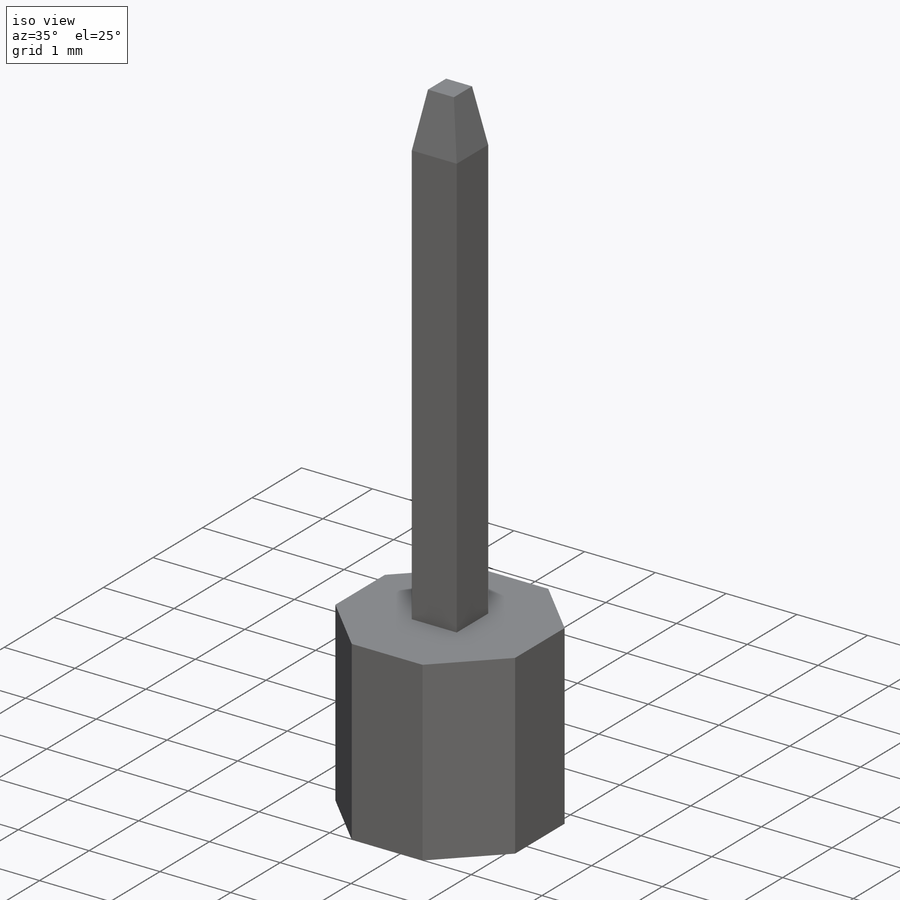
[diagram: iso view]
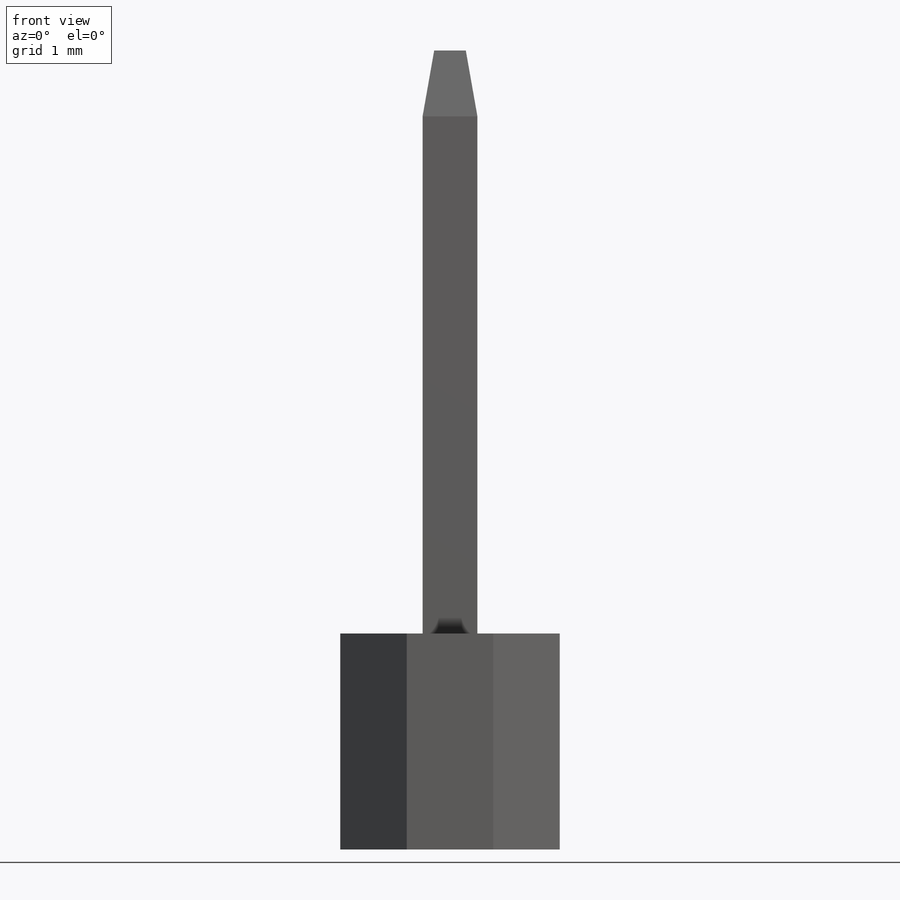
[diagram: front view]
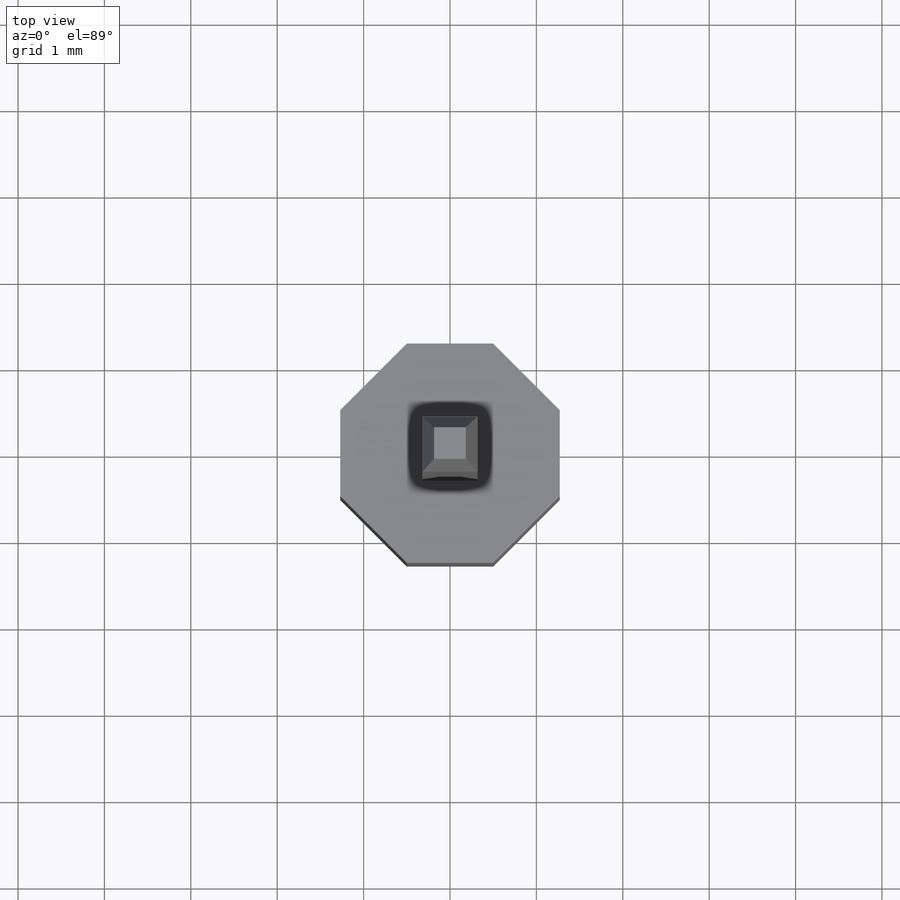
[diagram: top view]
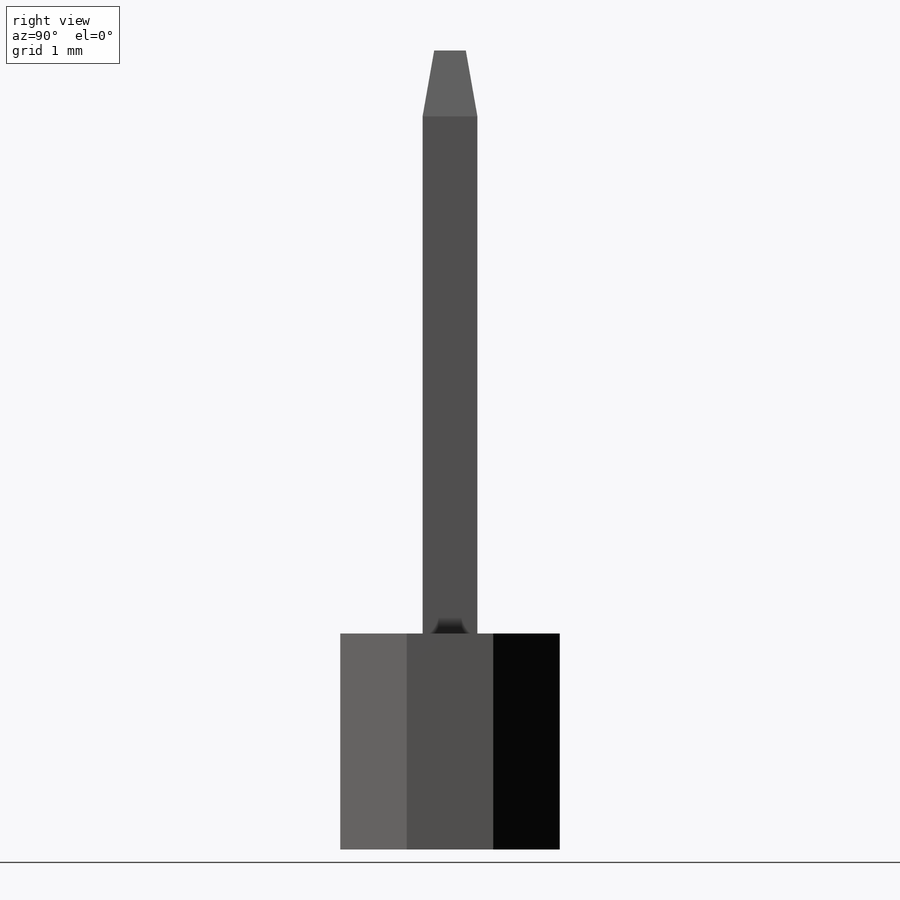
[diagram: right view]
SOLIDWORKS PART (.sldprt)
format: sldprt  version: not decoded by parser v0  size: 338,432 bytes
history: native  units: mm
features: sketch x2, extrude x2, material x1, chamfer x1 (+14 scaffold rows collapsed)
feature tree (20):
  scaffold x14  (default folders/planes/origin — collapsed)
  material  "Material <not specified>"
  sketch  "Sketch1"  dims[c1.D1=0.635mm c1.D2=~2.419202mm c1.D7=0.25mm c2.D2=2.54mm c2.D3=2.54mm c2.D4=3.0mm c2.D5=1.0mm c2.D6=5.08mm c3.D2=2.54mm c3.D3=2.54mm c3.D4=1.0mm c3.D5=1.0mm]
  extrude  "Boss-Extrude1"  Depth=2.5mm
  sketch  "Sketch2"  dims[D1=0.635mm D2=0.635mm]
  extrude  "Boss-Extrude2"  Depth=6.75mm
  chamfer  "Chamfer2"  Distance=0.762mm Angle=10deg
decode coverage: 5 of 5 modeling features carry decoded parameters
note: ~ marks probable driven/reference dimensions
note: suppression state not decoded; provenance and decode notes live in map.json
